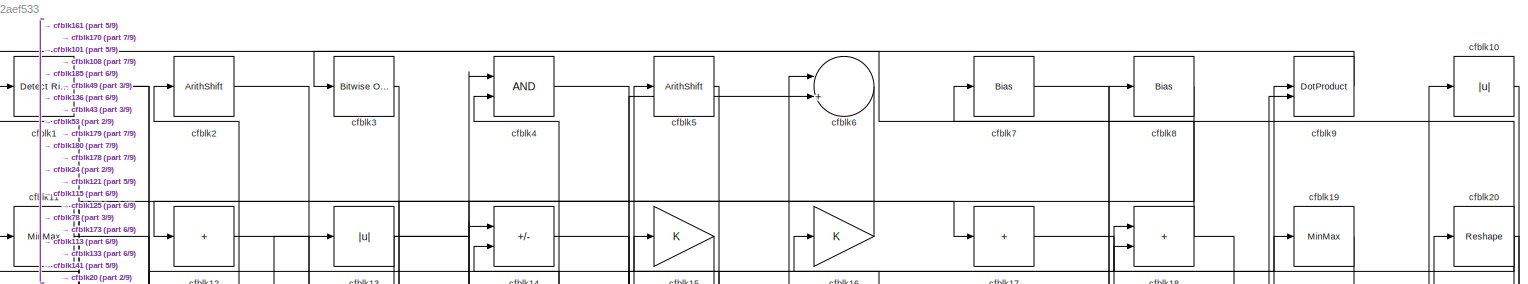
[diagram: root canvas - part 1/9, full width, top band]
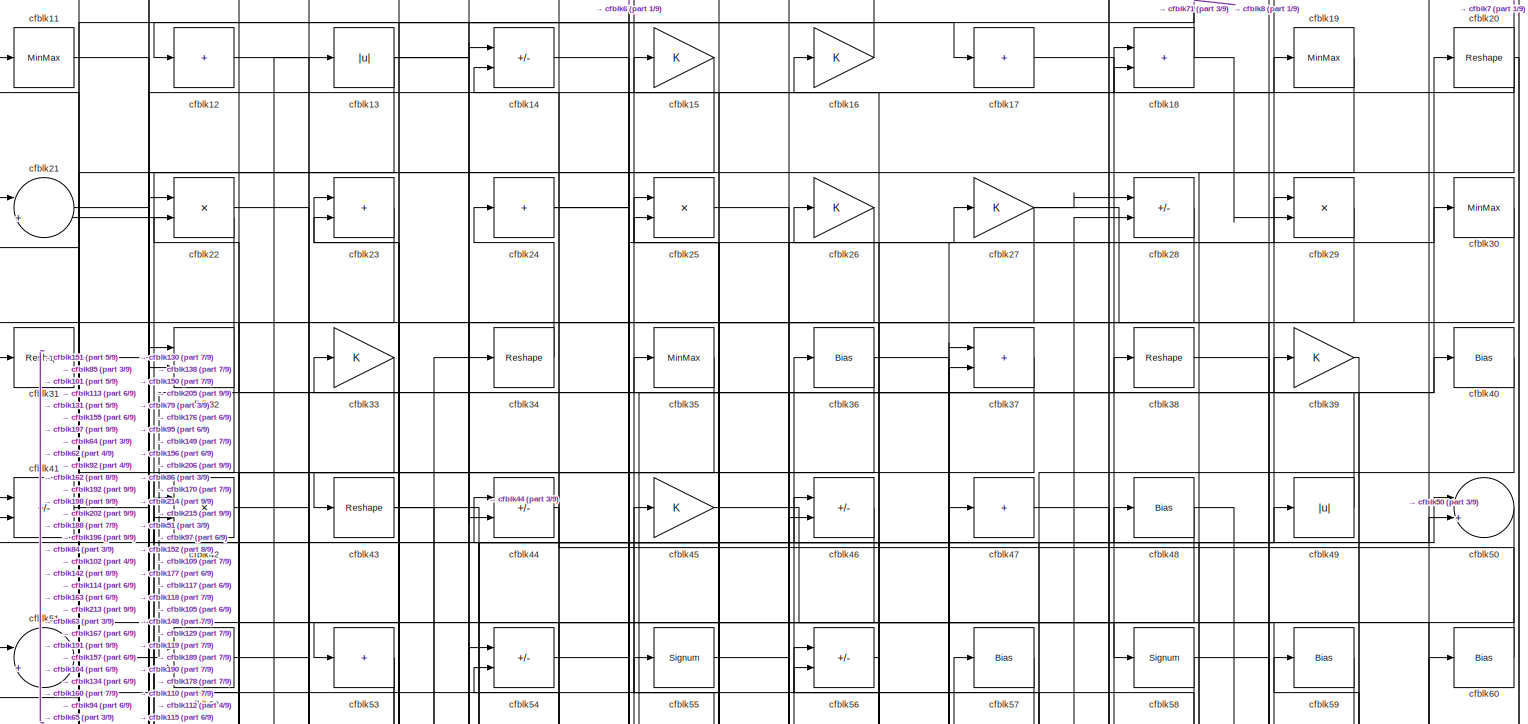
[diagram: root canvas - part 2/9, full width, top band]
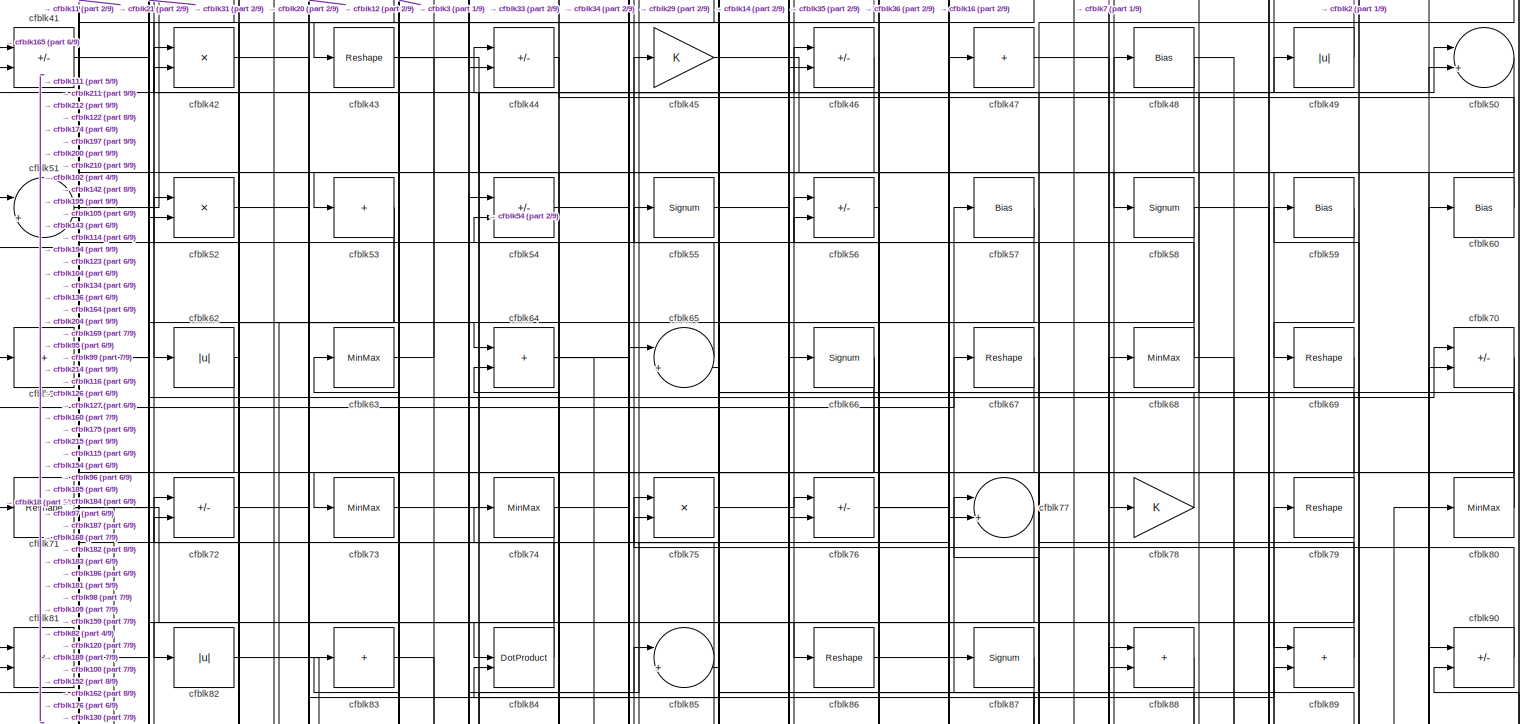
[diagram: root canvas - part 3/9, full width, top band]
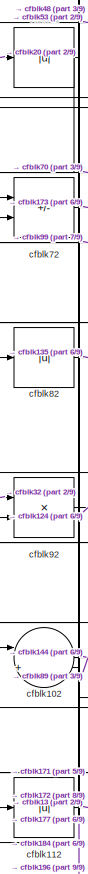
[diagram: root canvas - part 4/9, middle left region]
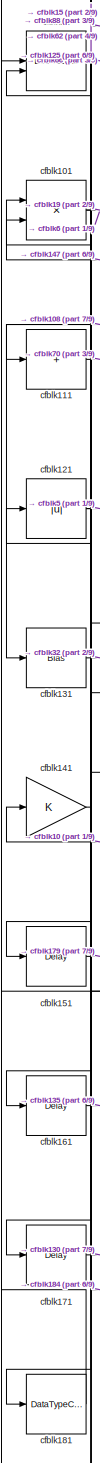
[diagram: root canvas - part 5/9, middle left region]
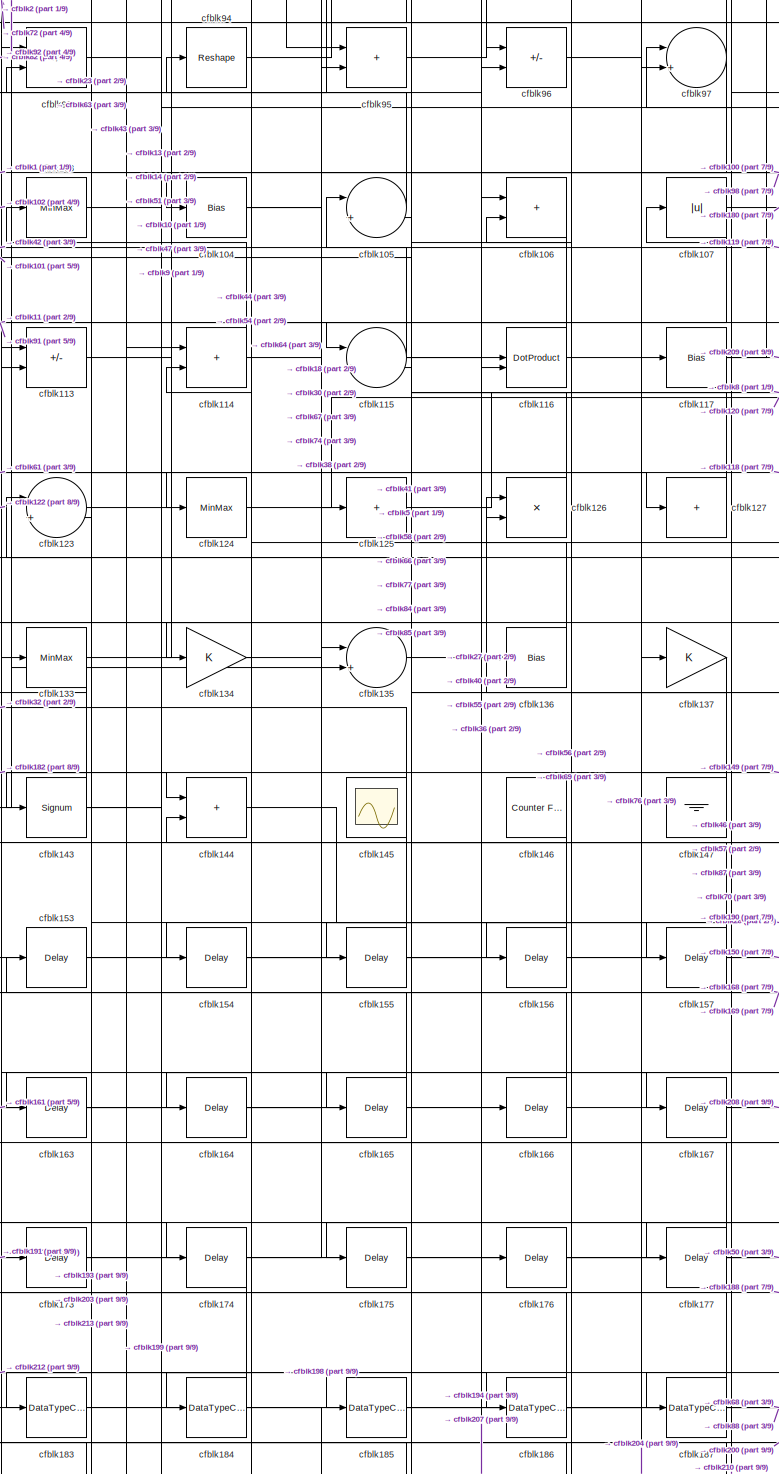
[diagram: root canvas - part 6/9, central region]
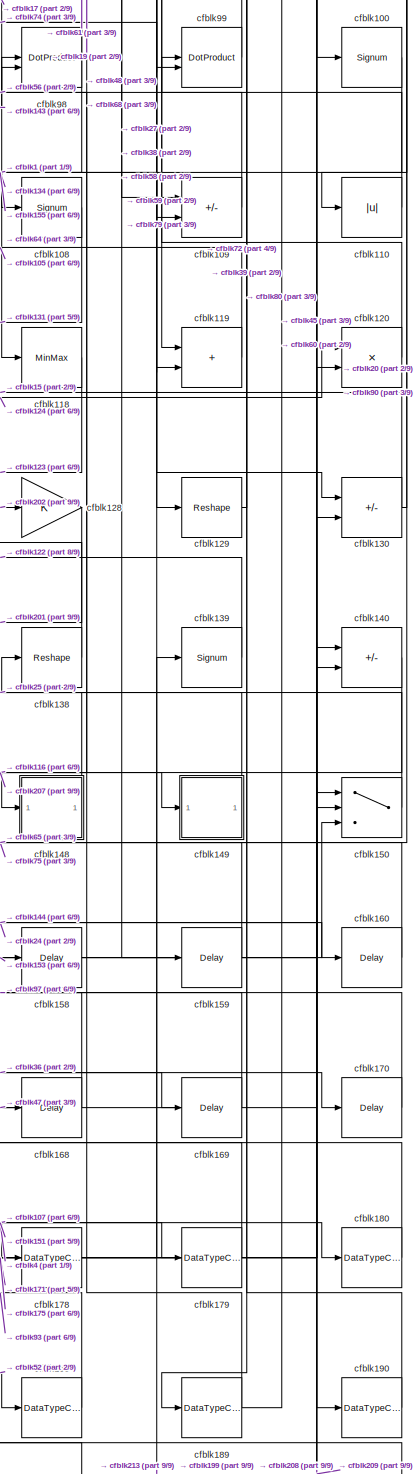
[diagram: root canvas - part 7/9, middle right region]
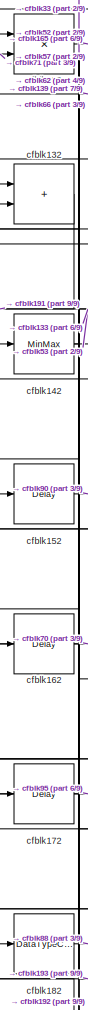
[diagram: root canvas - part 8/9, bottom left region]
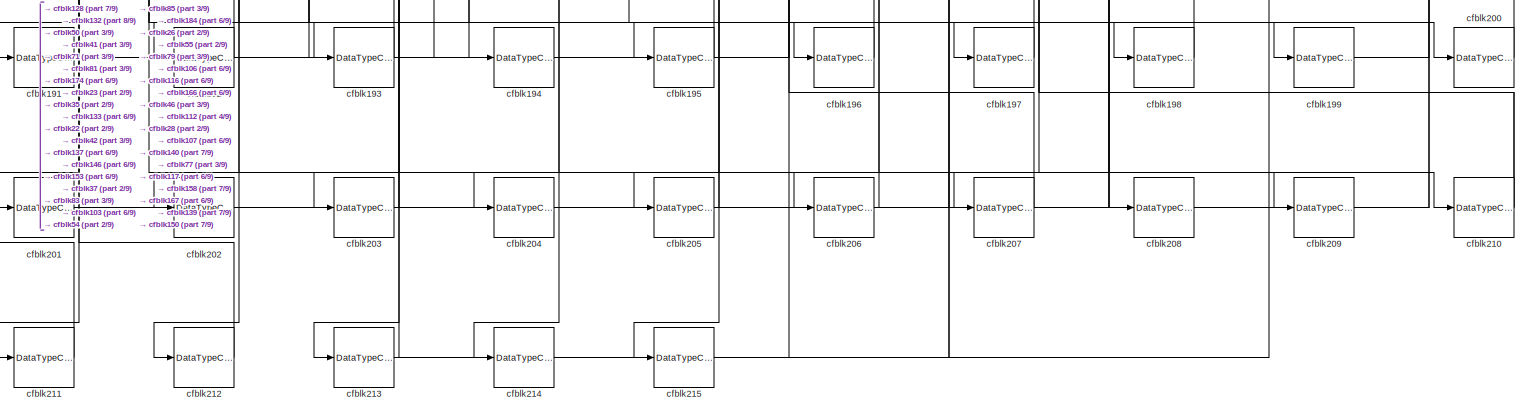
[diagram: root canvas - part 9/9, full width, bottom band]
MODEL slx_a1e552aef533
KIND model
CONFIG AbsTol = auto
CONFIG EnableMultiTasking = off
CONFIG FixedStep = auto
CONFIG MaxStep = auto
CONFIG MinStep = auto
CONFIG RelTol = 1e-3
CONFIG SampleTimeConstraint = Unconstrained
CONFIG SolverName = VariableStepAuto
CONFIG StartTime = 0.0
CONFIG StopTime = 10.0
BLOCK [Reference] cfblk1  REF=hdlsllib/Logic and Bit
Operations/Detect Rise
Positive
  SourceBlock = hdlsllib/Logic and Bit\nOperations/Detect Rise\nPositive
  SourceType = Detect Rise Positive
BLOCK [Abs] cfblk10
  SaturateOnIntegerOverflow = off
BLOCK [Signum] cfblk100
BLOCK [Product] cfblk101
  Inputs = */
  RndMeth = Zero
  SaturateOnIntegerOverflow = on
BLOCK [Sum] cfblk102
  Inputs = |++
BLOCK [MinMax] cfblk103
BLOCK [Bias] cfblk104
  Bias = 0.0
  SaturateOnIntegerOverflow = off
BLOCK [Sum] cfblk105
  Inputs = |++
BLOCK [Sum] cfblk106
  IconShape = rectangular
BLOCK [Abs] cfblk107
  SaturateOnIntegerOverflow = off
BLOCK [Signum] cfblk108
BLOCK [Sum] cfblk109
  IconShape = rectangular
  Inputs = +-
BLOCK [MinMax] cfblk11
BLOCK [Abs] cfblk110
  SaturateOnIntegerOverflow = off
BLOCK [Sum] cfblk111
  IconShape = rectangular
  Inputs = +
BLOCK [Abs] cfblk112
  SaturateOnIntegerOverflow = off
BLOCK [Sum] cfblk113
  IconShape = rectangular
  Inputs = +-
BLOCK [Sum] cfblk114
  IconShape = rectangular
BLOCK [Sum] cfblk115
  Inputs = |++
BLOCK [DotProduct] cfblk116
  OutDataTypeStr = Inherit: Inherit via internal rule
BLOCK [Bias] cfblk117
  Bias = 0.0
  SaturateOnIntegerOverflow = off
BLOCK [MinMax] cfblk118
BLOCK [Sum] cfblk119
  IconShape = rectangular
BLOCK [Sum] cfblk12
  IconShape = rectangular
  Inputs = +
BLOCK [Product] cfblk120
  Inputs = */
  RndMeth = Zero
  SaturateOnIntegerOverflow = on
BLOCK [Abs] cfblk121
  SaturateOnIntegerOverflow = off
BLOCK [Product] cfblk122
  Inputs = */
  RndMeth = Zero
  SaturateOnIntegerOverflow = on
BLOCK [Sum] cfblk123
  Inputs = |++
BLOCK [MinMax] cfblk124
BLOCK [Sum] cfblk125
  IconShape = rectangular
  Inputs = +
BLOCK [Product] cfblk126
  Inputs = */
  RndMeth = Zero
  SaturateOnIntegerOverflow = on
BLOCK [Sum] cfblk127
  IconShape = rectangular
  Inputs = +
BLOCK [Gain] cfblk128
BLOCK [Reshape] cfblk129
BLOCK [Abs] cfblk13
  SaturateOnIntegerOverflow = off
BLOCK [Sum] cfblk130
  IconShape = rectangular
  Inputs = +-
BLOCK [Bias] cfblk131
  Bias = 0.0
  SaturateOnIntegerOverflow = off
BLOCK [Sum] cfblk132
  IconShape = rectangular
BLOCK [MinMax] cfblk133
BLOCK [Gain] cfblk134
BLOCK [Sum] cfblk135
  Inputs = |++
BLOCK [Bias] cfblk136
  Bias = 0.0
  SaturateOnIntegerOverflow = off
BLOCK [Gain] cfblk137
BLOCK [Reshape] cfblk138
BLOCK [Signum] cfblk139
BLOCK [Sum] cfblk14
  IconShape = rectangular
  Inputs = +-
BLOCK [Sum] cfblk140
  IconShape = rectangular
  Inputs = +-
BLOCK [Gain] cfblk141
BLOCK [MinMax] cfblk142
BLOCK [Signum] cfblk143
BLOCK [Sum] cfblk144
  IconShape = rectangular
BLOCK [Scope] cfblk145
  Floating = on
  NumInputPorts = 1
  ScopeSpecificationString = Simulink.scopes.TimeScopeBlockCfg('CurrentConfiguration', extmgr.ConfigurationSet(extmgr.Configuration('Core','General UI',true,'FigureColor',[0.156862745098039 0.156862745098039 0.156862745098039]),extmgr.Configuration('Core','Source UI',true),extmgr.Configuration('Sources','WiredSimulink',true,'DataLoggingVariableName','ScopeData1','DataLoggingSaveFormat','StructureWithTime','DataLoggingLimitDat...<+2713ch>
BLOCK [Reference] cfblk146  REF=hdlsllib/Sources/Counter
Free-Running
  SourceBlock = hdlsllib/Sources/Counter\nFree-Running
  SourceType = Counter Free-Running
BLOCK [Ground] cfblk147
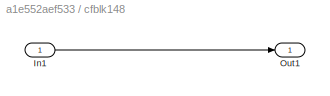
BLOCK [SubSystem] cfblk148
  LibrarySourceBlock = hdlsllib/Ports &\nSubsystems/Subsystem
BLOCK [Inport] cfblk148/In1
BLOCK [Outport] cfblk148/Out1
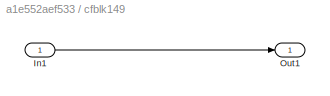
BLOCK [SubSystem] cfblk149
  LibrarySourceBlock = hdlsllib/Ports &\nSubsystems/Subsystem
BLOCK [Inport] cfblk149/In1
BLOCK [Outport] cfblk149/Out1
BLOCK [Gain] cfblk15
BLOCK [Switch] cfblk150
  InputSameDT = off
  SaturateOnIntegerOverflow = off
BLOCK [Delay] cfblk151
  InputPortMap = u0
  SampleTime = 1
BLOCK [Delay] cfblk152
  InputPortMap = u0
  SampleTime = 1
BLOCK [Delay] cfblk153
  InputPortMap = u0
  SampleTime = 1
BLOCK [Delay] cfblk154
  InputPortMap = u0
  SampleTime = 1
BLOCK [Delay] cfblk155
  InputPortMap = u0
  SampleTime = 1
BLOCK [Delay] cfblk156
  InputPortMap = u0
  SampleTime = 1
BLOCK [Delay] cfblk157
  InputPortMap = u0
  SampleTime = 1
BLOCK [Delay] cfblk158
  InputPortMap = u0
  SampleTime = 1
BLOCK [Delay] cfblk159
  InputPortMap = u0
  SampleTime = 1
BLOCK [Gain] cfblk16
BLOCK [Delay] cfblk160
  InputPortMap = u0
  SampleTime = 1
BLOCK [Delay] cfblk161
  InputPortMap = u0
  SampleTime = 1
BLOCK [Delay] cfblk162
  InputPortMap = u0
  SampleTime = 1
BLOCK [Delay] cfblk163
  InputPortMap = u0
  SampleTime = 1
BLOCK [Delay] cfblk164
  InputPortMap = u0
  SampleTime = 1
BLOCK [Delay] cfblk165
  InputPortMap = u0
  SampleTime = 1
BLOCK [Delay] cfblk166
  InputPortMap = u0
  SampleTime = 1
BLOCK [Delay] cfblk167
  InputPortMap = u0
  SampleTime = 1
BLOCK [Delay] cfblk168
  InputPortMap = u0
  SampleTime = 1
BLOCK [Delay] cfblk169
  InputPortMap = u0
  SampleTime = 1
BLOCK [Sum] cfblk17
  IconShape = rectangular
  Inputs = +
BLOCK [Delay] cfblk170
  InputPortMap = u0
  SampleTime = 1
BLOCK [Delay] cfblk171
  InputPortMap = u0
  SampleTime = 1
BLOCK [Delay] cfblk172
  InputPortMap = u0
  SampleTime = 1
BLOCK [Delay] cfblk173
  InputPortMap = u0
  SampleTime = 1
BLOCK [Delay] cfblk174
  InputPortMap = u0
  SampleTime = 1
BLOCK [Delay] cfblk175
  InputPortMap = u0
  SampleTime = 1
BLOCK [Delay] cfblk176
  InputPortMap = u0
  SampleTime = 1
BLOCK [Delay] cfblk177
  InputPortMap = u0
  SampleTime = 1
BLOCK [DataTypeConversion] cfblk178
  OutDataTypeStr = uint8
  RndMeth = Floor
  SaturateOnIntegerOverflow = off
BLOCK [DataTypeConversion] cfblk179
  OutDataTypeStr = uint8
  RndMeth = Floor
  SaturateOnIntegerOverflow = off
BLOCK [Sum] cfblk18
  IconShape = rectangular
BLOCK [DataTypeConversion] cfblk180
  OutDataTypeStr = uint8
  RndMeth = Floor
  SaturateOnIntegerOverflow = off
BLOCK [DataTypeConversion] cfblk181
  OutDataTypeStr = uint8
  RndMeth = Floor
  SaturateOnIntegerOverflow = off
BLOCK [DataTypeConversion] cfblk182
  OutDataTypeStr = uint8
  RndMeth = Floor
  SaturateOnIntegerOverflow = off
BLOCK [DataTypeConversion] cfblk183
  OutDataTypeStr = uint8
  RndMeth = Floor
  SaturateOnIntegerOverflow = off
BLOCK [DataTypeConversion] cfblk184
  RndMeth = Floor
  SaturateOnIntegerOverflow = off
BLOCK [DataTypeConversion] cfblk185
  OutDataTypeStr = uint8
  RndMeth = Floor
  SaturateOnIntegerOverflow = off
BLOCK [DataTypeConversion] cfblk186
  RndMeth = Floor
  SaturateOnIntegerOverflow = off
BLOCK [DataTypeConversion] cfblk187
  OutDataTypeStr = uint8
  RndMeth = Floor
  SaturateOnIntegerOverflow = off
BLOCK [DataTypeConversion] cfblk188
  OutDataTypeStr = uint8
  RndMeth = Floor
  SaturateOnIntegerOverflow = off
BLOCK [DataTypeConversion] cfblk189
  RndMeth = Floor
  SaturateOnIntegerOverflow = off
BLOCK [MinMax] cfblk19
BLOCK [DataTypeConversion] cfblk190
  OutDataTypeStr = uint8
  RndMeth = Floor
  SaturateOnIntegerOverflow = off
BLOCK [DataTypeConversion] cfblk191
  RndMeth = Floor
  SaturateOnIntegerOverflow = off
BLOCK [DataTypeConversion] cfblk192
  OutDataTypeStr = uint8
  RndMeth = Floor
  SaturateOnIntegerOverflow = off
BLOCK [DataTypeConversion] cfblk193
  OutDataTypeStr = uint8
  RndMeth = Floor
  SaturateOnIntegerOverflow = off
BLOCK [DataTypeConversion] cfblk194
  RndMeth = Floor
  SaturateOnIntegerOverflow = off
BLOCK [DataTypeConversion] cfblk195
  OutDataTypeStr = uint8
  RndMeth = Floor
  SaturateOnIntegerOverflow = off
BLOCK [DataTypeConversion] cfblk196
  OutDataTypeStr = uint8
  RndMeth = Floor
  SaturateOnIntegerOverflow = off
BLOCK [DataTypeConversion] cfblk197
  OutDataTypeStr = uint8
  RndMeth = Floor
  SaturateOnIntegerOverflow = off
BLOCK [DataTypeConversion] cfblk198
  OutDataTypeStr = uint8
  RndMeth = Floor
  SaturateOnIntegerOverflow = off
BLOCK [DataTypeConversion] cfblk199
  OutDataTypeStr = uint8
  RndMeth = Floor
  SaturateOnIntegerOverflow = off
BLOCK [ArithShift] cfblk2
  BitShiftNumber = 8
  InputPortMap = u0
BLOCK [Reshape] cfblk20
BLOCK [DataTypeConversion] cfblk200
  OutDataTypeStr = uint8
  RndMeth = Floor
  SaturateOnIntegerOverflow = off
BLOCK [DataTypeConversion] cfblk201
  OutDataTypeStr = uint8
  RndMeth = Floor
  SaturateOnIntegerOverflow = off
BLOCK [DataTypeConversion] cfblk202
  OutDataTypeStr = uint8
  RndMeth = Floor
  SaturateOnIntegerOverflow = off
BLOCK [DataTypeConversion] cfblk203
  OutDataTypeStr = uint8
  RndMeth = Floor
  SaturateOnIntegerOverflow = off
BLOCK [DataTypeConversion] cfblk204
  OutDataTypeStr = uint8
  RndMeth = Floor
  SaturateOnIntegerOverflow = off
BLOCK [DataTypeConversion] cfblk205
  OutDataTypeStr = uint8
  RndMeth = Floor
  SaturateOnIntegerOverflow = off
BLOCK [DataTypeConversion] cfblk206
  OutDataTypeStr = uint8
  RndMeth = Floor
  SaturateOnIntegerOverflow = off
BLOCK [DataTypeConversion] cfblk207
  OutDataTypeStr = uint8
  RndMeth = Floor
  SaturateOnIntegerOverflow = off
BLOCK [DataTypeConversion] cfblk208
  OutDataTypeStr = uint8
  RndMeth = Floor
  SaturateOnIntegerOverflow = off
BLOCK [DataTypeConversion] cfblk209
  OutDataTypeStr = uint8
  RndMeth = Floor
  SaturateOnIntegerOverflow = off
BLOCK [Sum] cfblk21
  Inputs = |++
BLOCK [DataTypeConversion] cfblk210
  RndMeth = Floor
  SaturateOnIntegerOverflow = off
BLOCK [DataTypeConversion] cfblk211
  OutDataTypeStr = uint8
  RndMeth = Floor
  SaturateOnIntegerOverflow = off
BLOCK [DataTypeConversion] cfblk212
  OutDataTypeStr = uint8
  RndMeth = Floor
  SaturateOnIntegerOverflow = off
BLOCK [DataTypeConversion] cfblk213
  RndMeth = Floor
  SaturateOnIntegerOverflow = off
BLOCK [DataTypeConversion] cfblk214
  OutDataTypeStr = uint8
  RndMeth = Floor
  SaturateOnIntegerOverflow = off
BLOCK [DataTypeConversion] cfblk215
  OutDataTypeStr = uint8
  RndMeth = Floor
  SaturateOnIntegerOverflow = off
BLOCK [Product] cfblk22
  Inputs = */
  RndMeth = Zero
  SaturateOnIntegerOverflow = on
BLOCK [Sum] cfblk23
  IconShape = rectangular
BLOCK [Sum] cfblk24
  IconShape = rectangular
  Inputs = +
BLOCK [Product] cfblk25
  Inputs = */
  RndMeth = Zero
  SaturateOnIntegerOverflow = on
BLOCK [Gain] cfblk26
BLOCK [Gain] cfblk27
BLOCK [Sum] cfblk28
  IconShape = rectangular
  Inputs = +-
BLOCK [Product] cfblk29
  Inputs = */
  RndMeth = Zero
  SaturateOnIntegerOverflow = on
BLOCK [Reference] cfblk3  REF=simulink/Logic and Bit
Operations/Bitwise
Operator
  LibrarySourceBlock = hdlsllib/Logic and Bit\nOperations/Bitwise\nOperator
  SourceBlock = simulink/Logic and Bit\nOperations/Bitwise\nOperator
  SourceType = Bitwise Operator
BLOCK [MinMax] cfblk30
BLOCK [Reshape] cfblk31
BLOCK [Sum] cfblk32
  IconShape = rectangular
BLOCK [Gain] cfblk33
BLOCK [Reshape] cfblk34
BLOCK [MinMax] cfblk35
BLOCK [Bias] cfblk36
  Bias = 0.0
  SaturateOnIntegerOverflow = off
BLOCK [Sum] cfblk37
  IconShape = rectangular
BLOCK [Reshape] cfblk38
BLOCK [Gain] cfblk39
BLOCK [Logic] cfblk4
  AllPortsSameDT = off
  OutDataTypeStr = boolean
BLOCK [Bias] cfblk40
  Bias = 0.0
  SaturateOnIntegerOverflow = off
BLOCK [Sum] cfblk41
  IconShape = rectangular
  Inputs = +-
BLOCK [Product] cfblk42
  Inputs = */
  RndMeth = Zero
  SaturateOnIntegerOverflow = on
BLOCK [Reshape] cfblk43
BLOCK [Sum] cfblk44
  IconShape = rectangular
  Inputs = +-
BLOCK [Gain] cfblk45
BLOCK [Sum] cfblk46
  IconShape = rectangular
  Inputs = +-
BLOCK [Sum] cfblk47
  IconShape = rectangular
  Inputs = +
BLOCK [Bias] cfblk48
  Bias = 0.0
  SaturateOnIntegerOverflow = off
BLOCK [Abs] cfblk49
  SaturateOnIntegerOverflow = off
BLOCK [ArithShift] cfblk5
  BitShiftNumber = 8
  InputPortMap = u0
BLOCK [Sum] cfblk50
  Inputs = |++
BLOCK [Sum] cfblk51
  Inputs = |++
BLOCK [Product] cfblk52
  Inputs = */
  RndMeth = Zero
  SaturateOnIntegerOverflow = on
BLOCK [Sum] cfblk53
  IconShape = rectangular
  Inputs = +
BLOCK [Sum] cfblk54
  IconShape = rectangular
  Inputs = +-
BLOCK [Signum] cfblk55
BLOCK [Sum] cfblk56
  IconShape = rectangular
  Inputs = +-
BLOCK [Bias] cfblk57
  Bias = 0.0
  SaturateOnIntegerOverflow = off
BLOCK [Signum] cfblk58
BLOCK [Bias] cfblk59
  Bias = 0.0
  SaturateOnIntegerOverflow = off
BLOCK [Sum] cfblk6
  Inputs = |++
BLOCK [Bias] cfblk60
  Bias = 0.0
  SaturateOnIntegerOverflow = off
BLOCK [Sum] cfblk61
  IconShape = rectangular
  Inputs = +
BLOCK [Abs] cfblk62
  SaturateOnIntegerOverflow = off
BLOCK [MinMax] cfblk63
BLOCK [Sum] cfblk64
  IconShape = rectangular
BLOCK [Sum] cfblk65
  Inputs = |++
BLOCK [Signum] cfblk66
BLOCK [Reshape] cfblk67
BLOCK [MinMax] cfblk68
BLOCK [Reshape] cfblk69
BLOCK [Bias] cfblk7
  Bias = 0.0
  SaturateOnIntegerOverflow = off
BLOCK [Sum] cfblk70
  IconShape = rectangular
  Inputs = +-
BLOCK [Reshape] cfblk71
BLOCK [Sum] cfblk72
  IconShape = rectangular
  Inputs = +-
BLOCK [MinMax] cfblk73
BLOCK [MinMax] cfblk74
BLOCK [Product] cfblk75
  Inputs = */
  RndMeth = Zero
  SaturateOnIntegerOverflow = on
BLOCK [Sum] cfblk76
  IconShape = rectangular
  Inputs = +-
BLOCK [Sum] cfblk77
  Inputs = |++
BLOCK [Gain] cfblk78
BLOCK [Reshape] cfblk79
BLOCK [Bias] cfblk8
  Bias = 0.0
  SaturateOnIntegerOverflow = off
BLOCK [MinMax] cfblk80
BLOCK [Sum] cfblk81
  IconShape = rectangular
BLOCK [Abs] cfblk82
  SaturateOnIntegerOverflow = off
BLOCK [Sum] cfblk83
  IconShape = rectangular
  Inputs = +
BLOCK [DotProduct] cfblk84
  OutDataTypeStr = Inherit: Inherit via internal rule
BLOCK [Sum] cfblk85
  Inputs = |++
BLOCK [Reshape] cfblk86
BLOCK [Signum] cfblk87
BLOCK [Sum] cfblk88
  IconShape = rectangular
BLOCK [Sum] cfblk89
  IconShape = rectangular
BLOCK [DotProduct] cfblk9
  OutDataTypeStr = Inherit: Inherit via internal rule
BLOCK [Sum] cfblk90
  IconShape = rectangular
  Inputs = +-
BLOCK [DotProduct] cfblk91
  OutDataTypeStr = Inherit: Inherit via internal rule
BLOCK [Product] cfblk92
  Inputs = */
  RndMeth = Zero
  SaturateOnIntegerOverflow = on
BLOCK [Sum] cfblk93
  IconShape = rectangular
  Inputs = +-
BLOCK [Reshape] cfblk94
BLOCK [Sum] cfblk95
  IconShape = rectangular
BLOCK [Sum] cfblk96
  IconShape = rectangular
  Inputs = +-
BLOCK [Sum] cfblk97
  Inputs = |++
BLOCK [DotProduct] cfblk98
  OutDataTypeStr = Inherit: Inherit via internal rule
BLOCK [DotProduct] cfblk99
  OutDataTypeStr = Inherit: Inherit via internal rule
LINE cfblk100:1 -> cfblk155:1
NET cfblk101:1 -> cfblk19:1, cfblk6:1
NET cfblk102:1 -> cfblk144:1, cfblk89:2
LINE cfblk103:1 -> cfblk199:1
NET cfblk104:1 -> cfblk30:1, cfblk67:1
LINE cfblk105:1 -> cfblk63:1
LINE cfblk106:1 -> cfblk154:1
NET cfblk107:1 -> cfblk116:2, cfblk180:1
LINE cfblk108:1 -> cfblk131:1
LINE cfblk109:1 -> cfblk56:1
LINE cfblk10:1 -> cfblk141:1
LINE cfblk110:1 -> cfblk99:1
LINE cfblk111:1 -> cfblk70:1
LINE cfblk112:1 -> cfblk13:1
LINE cfblk113:1 -> cfblk9:1
NET cfblk114:1 -> cfblk157:1, cfblk23:1
NET cfblk115:1 -> cfblk27:1, cfblk40:1, cfblk42:2
NET cfblk116:1 -> cfblk149:1, cfblk41:2
NET cfblk117:1 -> cfblk209:1, cfblk28:2
LINE cfblk118:1 -> cfblk123:2
LINE cfblk119:1 -> cfblk105:1
LINE cfblk11:1 -> cfblk113:2
LINE cfblk120:1 -> cfblk79:1
NET cfblk121:1 -> cfblk101:1, cfblk5:1
LINE cfblk122:1 -> cfblk165:1
LINE cfblk123:1 -> cfblk47:1
LINE cfblk124:1 -> cfblk120:1
LINE cfblk125:1 -> cfblk8:1
NET cfblk126:1 -> cfblk85:2, cfblk94:1
LINE cfblk127:1 -> cfblk84:2
LINE cfblk128:1 -> cfblk201:1
LINE cfblk129:1 -> cfblk59:1
LINE cfblk12:1 -> cfblk84:1
NET cfblk130:1 -> cfblk15:1, cfblk90:2
LINE cfblk131:1 -> cfblk32:2
LINE cfblk132:1 -> cfblk191:1
NET cfblk133:1 -> cfblk10:1, cfblk182:1
NET cfblk134:1 -> cfblk18:1, cfblk64:2
LINE cfblk135:1 -> cfblk126:2
LINE cfblk136:1 -> cfblk74:1
LINE cfblk137:1 -> cfblk203:1
LINE cfblk138:1 -> cfblk25:2
LINE cfblk139:1 -> cfblk122:1
NET cfblk13:1 -> cfblk167:1, cfblk17:1, cfblk52:2
LINE cfblk140:1 -> cfblk207:1
LINE cfblk141:1 -> cfblk121:1
NET cfblk142:1 -> cfblk52:1, cfblk66:1
NET cfblk143:1 -> cfblk51:1, cfblk85:1, cfblk98:1
LINE cfblk144:1 -> cfblk190:1
LINE cfblk146:1 -> cfblk193:1
NET cfblk147:1 -> cfblk101:2, cfblk126:1
LINE cfblk148/In1:1 -> cfblk148/Out1:1
LINE cfblk148:1 -> cfblk138:1
LINE cfblk149/In1:1 -> cfblk149/Out1:1
LINE cfblk149:1 -> cfblk56:2
LINE cfblk14:1 -> cfblk65:1
LINE cfblk150:1 -> cfblk25:1
LINE cfblk151:1 -> cfblk179:1
LINE cfblk152:1 -> cfblk90:1
LINE cfblk153:1 -> cfblk150:3
LINE cfblk154:1 -> cfblk76:2
LINE cfblk155:1 -> cfblk32:1
LINE cfblk156:1 -> cfblk113:1
LINE cfblk157:1 -> cfblk54:2
LINE cfblk158:1 -> cfblk150:2
LINE cfblk159:1 -> cfblk75:2
LINE cfblk15:1 -> cfblk151:1
LINE cfblk160:1 -> cfblk65:2
LINE cfblk161:1 -> cfblk135:1
LINE cfblk162:1 -> cfblk70:2
LINE cfblk163:1 -> cfblk14:1
LINE cfblk164:1 -> cfblk96:2
LINE cfblk165:1 -> cfblk41:1
LINE cfblk166:1 -> cfblk144:2
LINE cfblk167:1 -> cfblk208:1
LINE cfblk168:1 -> cfblk123:1
LINE cfblk169:1 -> cfblk97:1
LINE cfblk16:1 -> cfblk12:1
LINE cfblk170:1 -> cfblk1:1
LINE cfblk171:1 -> cfblk130:2
LINE cfblk172:1 -> cfblk95:2
LINE cfblk173:1 -> cfblk9:2
LINE cfblk174:1 -> cfblk212:1
LINE cfblk175:1 -> cfblk120:2
LINE cfblk176:1 -> cfblk50:2
LINE cfblk177:1 -> cfblk92:2
LINE cfblk178:1 -> cfblk60:1
LINE cfblk179:1 -> cfblk4:1
LINE cfblk17:1 -> cfblk118:1
LINE cfblk180:1 -> cfblk4:2
LINE cfblk181:1 -> cfblk91:1
LINE cfblk182:1 -> cfblk88:1
LINE cfblk183:1 -> cfblk88:2
NET cfblk184:1 -> cfblk198:1, cfblk72:2, cfblk91:2
LINE cfblk185:1 -> cfblk87:1
NET cfblk186:1 -> cfblk106:2, cfblk114:2, cfblk68:1
LINE cfblk187:1 -> cfblk93:1
LINE cfblk188:1 -> cfblk93:2
NET cfblk189:1 -> cfblk80:1, cfblk98:2
NET cfblk18:1 -> cfblk29:2, cfblk71:1
LINE cfblk190:1 -> cfblk39:1
NET cfblk191:1 -> cfblk133:1, cfblk54:1
LINE cfblk192:1 -> cfblk132:1
LINE cfblk193:1 -> cfblk132:2
NET cfblk194:1 -> cfblk106:1, cfblk46:2
LINE cfblk195:1 -> cfblk83:1
LINE cfblk196:1 -> cfblk112:1
LINE cfblk197:1 -> cfblk22:1
LINE cfblk198:1 -> cfblk22:2
LINE cfblk199:1 -> cfblk150:1
LINE cfblk19:1 -> cfblk148:1
NET cfblk1:1 -> cfblk108:1, cfblk185:1
LINE cfblk200:1 -> cfblk103:1
LINE cfblk201:1 -> cfblk158:1
LINE cfblk202:1 -> cfblk128:1
LINE cfblk203:1 -> cfblk153:1
LINE cfblk204:1 -> cfblk137:1
LINE cfblk205:1 -> cfblk55:1
LINE cfblk206:1 -> cfblk26:1
LINE cfblk207:1 -> cfblk116:1
LINE cfblk208:1 -> cfblk140:1
LINE cfblk209:1 -> cfblk140:2
NET cfblk20:1 -> cfblk110:1, cfblk18:2, cfblk62:1, cfblk7:1
NET cfblk210:1 -> cfblk107:1, cfblk77:1
LINE cfblk211:1 -> cfblk81:1
LINE cfblk212:1 -> cfblk81:2
NET cfblk213:1 -> cfblk139:1, cfblk166:1, cfblk23:2
LINE cfblk214:1 -> cfblk37:1
LINE cfblk215:1 -> cfblk37:2
LINE cfblk21:1 -> cfblk86:1
LINE cfblk22:1 -> cfblk196:1
LINE cfblk23:1 -> cfblk202:1
NET cfblk24:1 -> cfblk160:1, cfblk6:2
LINE cfblk25:1 -> cfblk58:1
LINE cfblk26:1 -> cfblk205:1
NET cfblk27:1 -> cfblk129:1, cfblk28:1, cfblk31:1
LINE cfblk28:1 -> cfblk206:1
LINE cfblk29:1 -> cfblk44:2
LINE cfblk2:1 -> cfblk136:1
LINE cfblk30:1 -> cfblk163:1
LINE cfblk31:1 -> cfblk64:1
NET cfblk32:1 -> cfblk21:2, cfblk92:1
LINE cfblk33:1 -> cfblk162:1
LINE cfblk34:1 -> cfblk24:1
LINE cfblk35:1 -> cfblk192:1
NET cfblk36:1 -> cfblk170:1, cfblk51:2
LINE cfblk37:1 -> cfblk213:1
LINE cfblk38:1 -> cfblk119:2
LINE cfblk39:1 -> cfblk189:1
LINE cfblk3:1 -> cfblk43:1
LINE cfblk40:1 -> cfblk177:1
LINE cfblk41:1 -> cfblk200:1
LINE cfblk42:1 -> cfblk195:1
NET cfblk43:1 -> cfblk114:1, cfblk69:1
LINE cfblk44:1 -> cfblk104:1
LINE cfblk45:1 -> cfblk100:1
LINE cfblk46:1 -> cfblk204:1
LINE cfblk47:1 -> cfblk168:1
NET cfblk48:1 -> cfblk159:1, cfblk82:1
LINE cfblk49:1 -> cfblk2:1
LINE cfblk4:1 -> cfblk178:1
LINE cfblk50:1 -> cfblk211:1
LINE cfblk51:1 -> cfblk20:1
LINE cfblk52:1 -> cfblk188:1
NET cfblk53:1 -> cfblk102:2, cfblk142:1
LINE cfblk54:1 -> cfblk50:1
LINE cfblk55:1 -> cfblk176:1
LINE cfblk56:1 -> cfblk156:1
LINE cfblk57:1 -> cfblk152:1
NET cfblk58:1 -> cfblk105:2, cfblk130:1
LINE cfblk59:1 -> cfblk119:1
LINE cfblk5:1 -> cfblk115:1
LINE cfblk60:1 -> cfblk14:2
NET cfblk61:1 -> cfblk127:1, cfblk174:1
NET cfblk62:1 -> cfblk171:1, cfblk172:1
LINE cfblk63:1 -> cfblk34:1
NET cfblk64:1 -> cfblk109:2, cfblk169:1, cfblk95:1
LINE cfblk65:1 -> cfblk11:1
NET cfblk66:1 -> cfblk111:1, cfblk175:1
LINE cfblk67:1 -> cfblk164:1
NET cfblk68:1 -> cfblk109:1, cfblk45:1
LINE cfblk69:1 -> cfblk96:1
LINE cfblk6:1 -> cfblk161:1
NET cfblk70:1 -> cfblk102:1, cfblk187:1
NET cfblk71:1 -> cfblk122:2, cfblk197:1, cfblk89:1
LINE cfblk72:1 -> cfblk173:1
LINE cfblk73:1 -> cfblk49:1
NET cfblk74:1 -> cfblk143:1, cfblk99:2
LINE cfblk75:1 -> cfblk76:1
NET cfblk76:1 -> cfblk77:2, cfblk97:2
LINE cfblk77:1 -> cfblk115:2
LINE cfblk78:1 -> cfblk44:1
NET cfblk79:1 -> cfblk215:1, cfblk35:1
LINE cfblk7:1 -> cfblk78:1
NET cfblk80:1 -> cfblk48:1, cfblk73:1
LINE cfblk81:1 -> cfblk210:1
LINE cfblk82:1 -> cfblk135:2
LINE cfblk83:1 -> cfblk194:1
LINE cfblk84:1 -> cfblk33:1
NET cfblk85:1 -> cfblk214:1, cfblk21:1
NET cfblk86:1 -> cfblk16:1, cfblk29:1
LINE cfblk87:1 -> cfblk184:1
LINE cfblk88:1 -> cfblk181:1
LINE cfblk89:1 -> cfblk42:1
LINE cfblk8:1 -> cfblk53:1
LINE cfblk90:1 -> cfblk75:1
LINE cfblk91:1 -> cfblk125:1
LINE cfblk92:1 -> cfblk124:1
LINE cfblk93:1 -> cfblk186:1
LINE cfblk94:1 -> cfblk38:1
LINE cfblk95:1 -> cfblk36:1
LINE cfblk96:1 -> cfblk117:1
NET cfblk97:1 -> cfblk183:1, cfblk46:1, cfblk57:1
NET cfblk98:1 -> cfblk134:1, cfblk61:1
LINE cfblk99:1 -> cfblk72:1
LINE cfblk9:1 -> cfblk3:1
note: NET lines group one-source signal fan-out (src -> all destinations, sorted); 1:1 wires keep LINE
